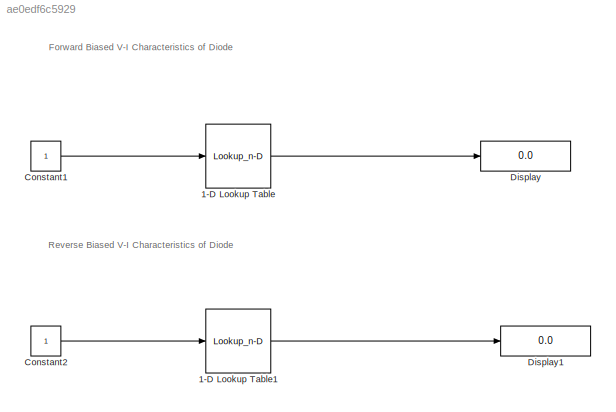
MODEL slx_ae0edf6c5929
KIND model
CONFIG AbsTol = auto
CONFIG EnableMultiTasking = off
CONFIG FixedStep = auto
CONFIG MaxStep = auto
CONFIG MinStep = auto
CONFIG RelTol = 1e-3
CONFIG SampleTimeConstraint = Unconstrained
CONFIG SolverName = VariableStepAuto
CONFIG StartTime = 0.0
CONFIG StopTime = 10.0
BLOCK [Lookup_n-D] 1-D Lookup Table
  BreakpointsForDimension1 = [0.283\n0.347\n0.37\n0.395\n0.425\n0.435\n0.445\n0.467\n0.485\n0.496\n0.503\n0.517\n0.525\n0.527\n0.538\n0.544\n0.555\n0.563\n0.573\n0.575\n0.585\n0.592\n0.598\n0.605\n0.618\n0.623\n0.63\n0.646\n0.653\n0.658\n0.665\n0.672\n0.677\n0.68\n]
  InputPortMap = u0
  InternalRulePriority = Speed
  NumberOfTableDimensions = 1
  Ports = [1, 1]
  RndMeth = Simplest
  Table = [0\n0.001\n0.001\n0.005\n0.009\n0.012\n0.018\n0.047\n0.06\n0.082\n0.101\n0.145\n0.175\n0.181\n0.246\n0.306\n0.412\n0.509\n0.646\n0.693\n0.822\n0.979\n1.112\n1.335\n1.805\n2.007\n2.392\n3.4\n3.9\n4.3\n5.3\n6.7\n7.6\n8\n]
BLOCK [Lookup_n-D] 1-D Lookup Table1
  BreakpointsForDimension1 = [0.9\n1.6\n2.07\n3.78\n4.94\n5.95\n7.27\n8.01\n9.32\n9.84\n10.34\n11.94\n12.77\n13.93\n15.11\n16.32\n17.03\n17.81\n18.56\n19.35\n]
  InputPortMap = u0
  InternalRulePriority = Speed
  NumberOfTableDimensions = 1
  Ports = [1, 1]
  RndMeth = Simplest
  Table = [0\n0.001\n0.002\n0.003\n0.004\n0.005\n0.006\n0.007\n0.008\n0.009\n0.01\n0.011\n0.012\n0.013\n0.014\n0.015\n0.016\n0.017\n0.018\n0.019\n]
BLOCK [Constant] Constant1
BLOCK [Constant] Constant2
BLOCK [Display] Display
  Decimation = 1
  Ports = [1]
BLOCK [Display] Display1
  Decimation = 1
  Ports = [1]
ANNOTATION (root): Forward Biased V-I Characteristics of Diode
ANNOTATION (root): Reverse Biased V-I Characteristics of Diode
LINE 1-D Lookup Table1:1 -> Display1:1
LINE 1-D Lookup Table:1 -> Display:1
LINE Constant1:1 -> 1-D Lookup Table:1
LINE Constant2:1 -> 1-D Lookup Table1:1
